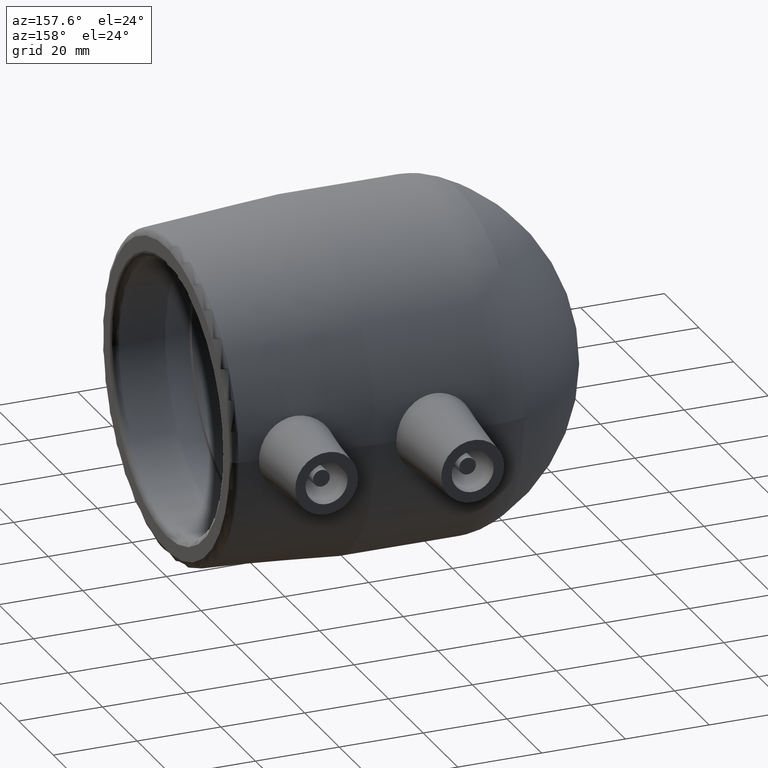
[diagram: clean part render]
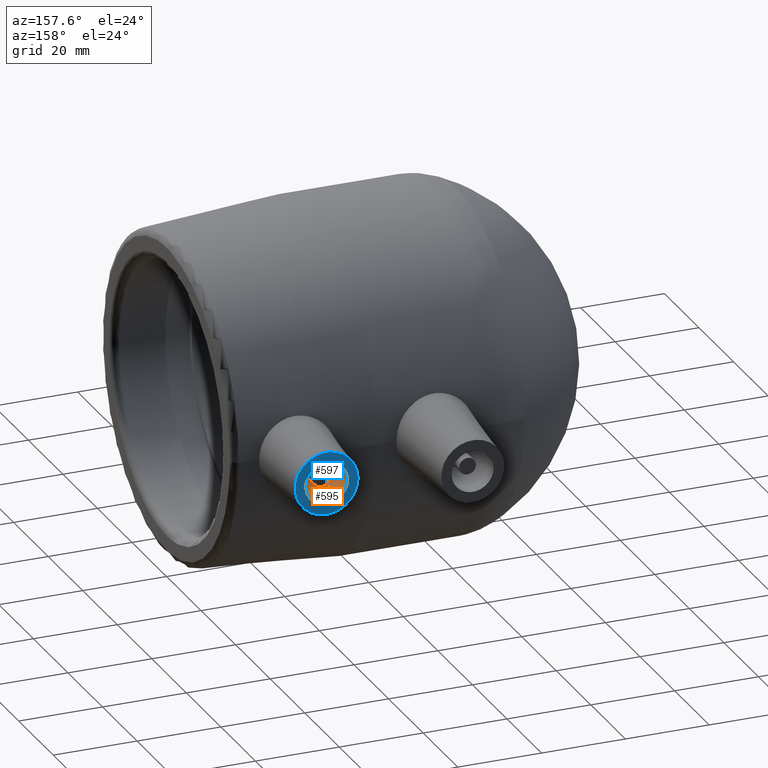
[diagram: same view with the hole feature highlighted: cylindrical wall and planar end face, labeled with their STEP entity ids]
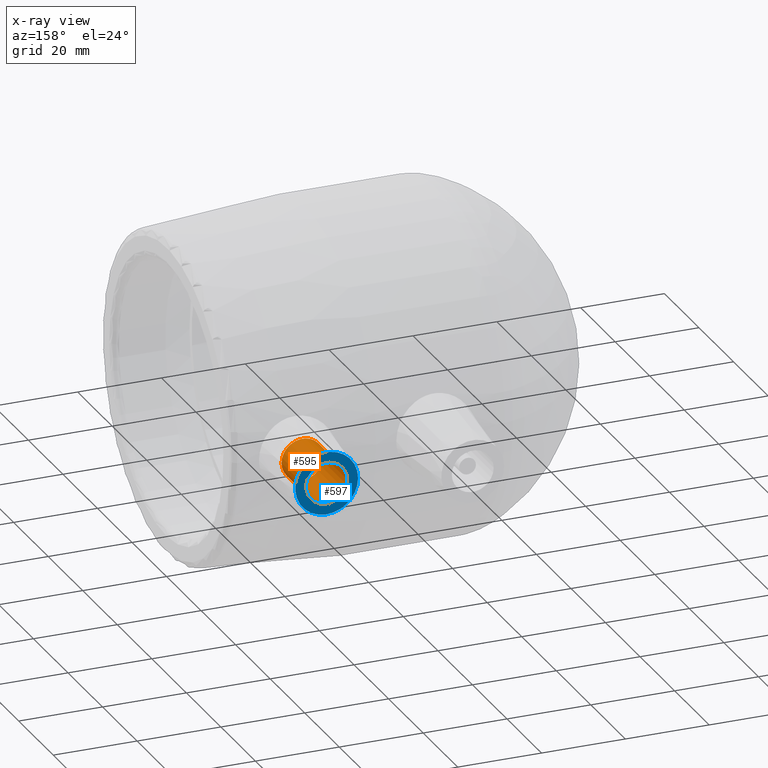
[diagram: x-ray of the same camera — body ghosted, the hole faces saturated]
A machine part, auxiliary view. The highlighted faces form one hole feature of diameter 10 mm: the cylindrical wall (entity #595, orange) and its adjacent planar end face (entity #597, blue) — they share a circular edge in the B-rep.
The next image is the same camera in x-ray (body ghosted, the hole faces saturated) — the bore reads through the body.
Wall:
#20=FACE_BOUND('',#180,.T.);
#43=CYLINDRICAL_SURFACE('',#669,5.);
#133=FACE_OUTER_BOUND('',#179,.T.);
#179=EDGE_LOOP('',(#497));
#180=EDGE_LOOP('',(#498));
#249=CIRCLE('',#670,5.);
#250=CIRCLE('',#671,5.);
#302=VERTEX_POINT('',#1082);
#303=VERTEX_POINT('',#1084);
#377=EDGE_CURVE('',#302,#302,#249,.T.);
#378=EDGE_CURVE('',#303,#303,#250,.T.);
#497=ORIENTED_EDGE('',*,*,#377,.T.);
#498=ORIENTED_EDGE('',*,*,#378,.F.);
#595=ADVANCED_FACE('',(#133,#20),#43,.F.);
#669=AXIS2_PLACEMENT_3D('',#1081,#832,#833);
#670=AXIS2_PLACEMENT_3D('',#1083,#834,#835);
#671=AXIS2_PLACEMENT_3D('',#1085,#836,#837);
#832=DIRECTION('center_axis',(0.,-1.,0.));
#833=DIRECTION('ref_axis',(-1.,0.,0.));
#834=DIRECTION('center_axis',(0.,-1.,0.));
#835=DIRECTION('ref_axis',(-1.,0.,0.));
#836=DIRECTION('center_axis',(0.,-1.,0.));
#837=DIRECTION('ref_axis',(-1.,0.,0.));
#1081=CARTESIAN_POINT('Origin',(-15.2,55.8,0.));
#1082=CARTESIAN_POINT('',(-10.2,41.8,-6.12323399573677E-16));
#1083=CARTESIAN_POINT('Origin',(-15.2,41.8,0.));
#1084=CARTESIAN_POINT('',(-10.2,55.8,-6.12323399573677E-16));
#1085=CARTESIAN_POINT('Origin',(-15.2,55.8,0.));
End face:
#22=FACE_BOUND('',#184,.T.);
#135=FACE_OUTER_BOUND('',#183,.T.);
#183=EDGE_LOOP('',(#501));
#184=EDGE_LOOP('',(#502));
#250=CIRCLE('',#671,5.);
#251=CIRCLE('',#674,7.5);
#303=VERTEX_POINT('',#1084);
#304=VERTEX_POINT('',#1088);
#378=EDGE_CURVE('',#303,#303,#250,.T.);
#379=EDGE_CURVE('',#304,#304,#251,.T.);
#501=ORIENTED_EDGE('',*,*,#379,.F.);
#502=ORIENTED_EDGE('',*,*,#378,.T.);
#566=PLANE('',#673);
#597=ADVANCED_FACE('',(#135,#22),#566,.T.);
#671=AXIS2_PLACEMENT_3D('',#1085,#836,#837);
#673=AXIS2_PLACEMENT_3D('',#1087,#840,#841);
#674=AXIS2_PLACEMENT_3D('',#1089,#842,#843);
#836=DIRECTION('center_axis',(0.,-1.,0.));
#837=DIRECTION('ref_axis',(-1.,0.,0.));
#840=DIRECTION('center_axis',(0.,1.,0.));
#841=DIRECTION('ref_axis',(0.,0.,1.));
#842=DIRECTION('center_axis',(0.,-1.,0.));
#843=DIRECTION('ref_axis',(1.,0.,0.));
#1084=CARTESIAN_POINT('',(-10.2,55.8,-6.12323399573677E-16));
#1085=CARTESIAN_POINT('Origin',(-15.2,55.8,0.));
#1087=CARTESIAN_POINT('Origin',(-15.2,55.8,1.2335811384724E-16));
#1088=CARTESIAN_POINT('',(-22.7,55.8,9.18485099360515E-16));
#1089=CARTESIAN_POINT('Origin',(-15.2,55.8,0.));